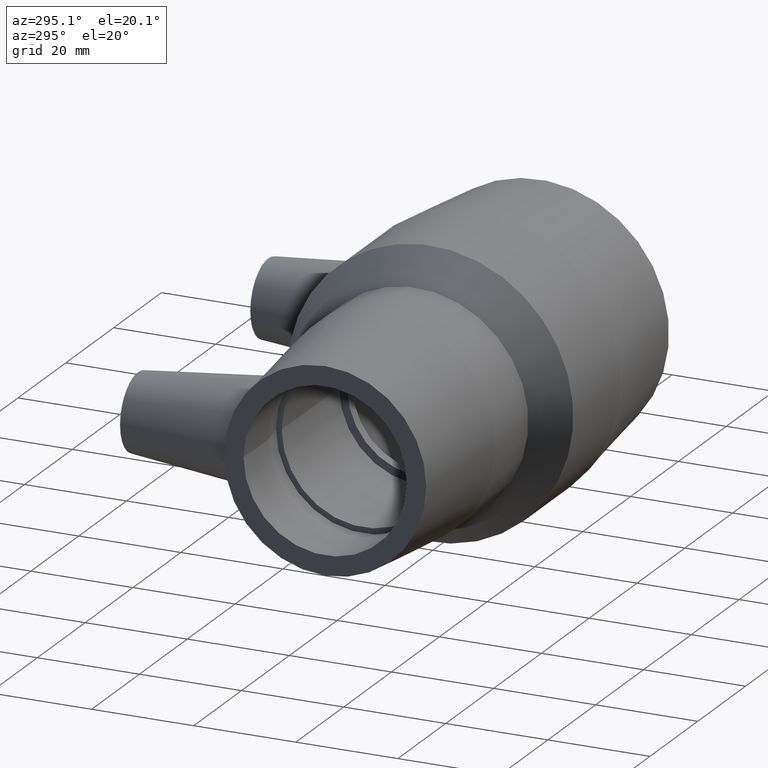
[diagram: clean part render]
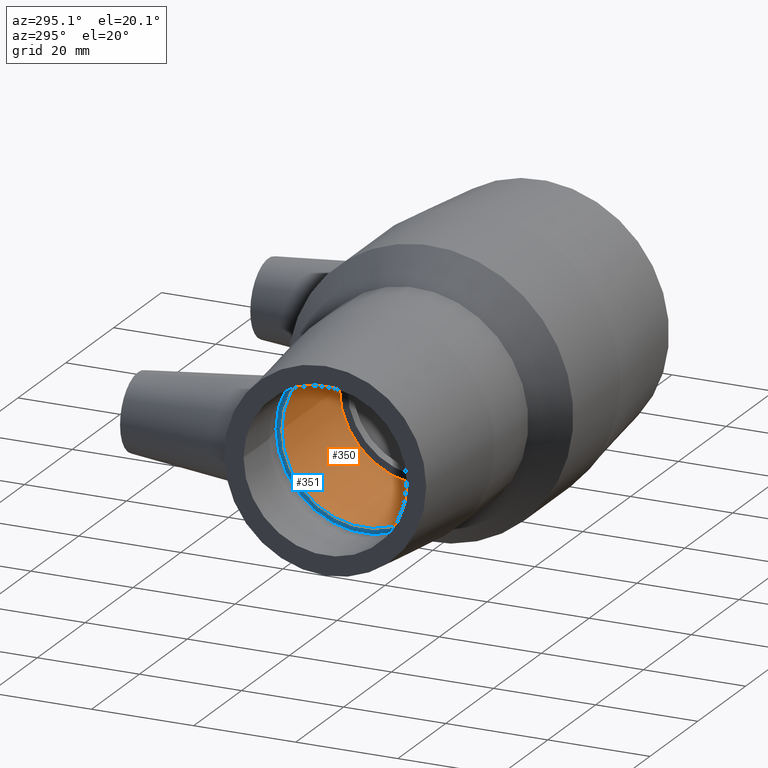
[diagram: same view with the hole feature highlighted: cylindrical wall and planar end face, labeled with their STEP entity ids]
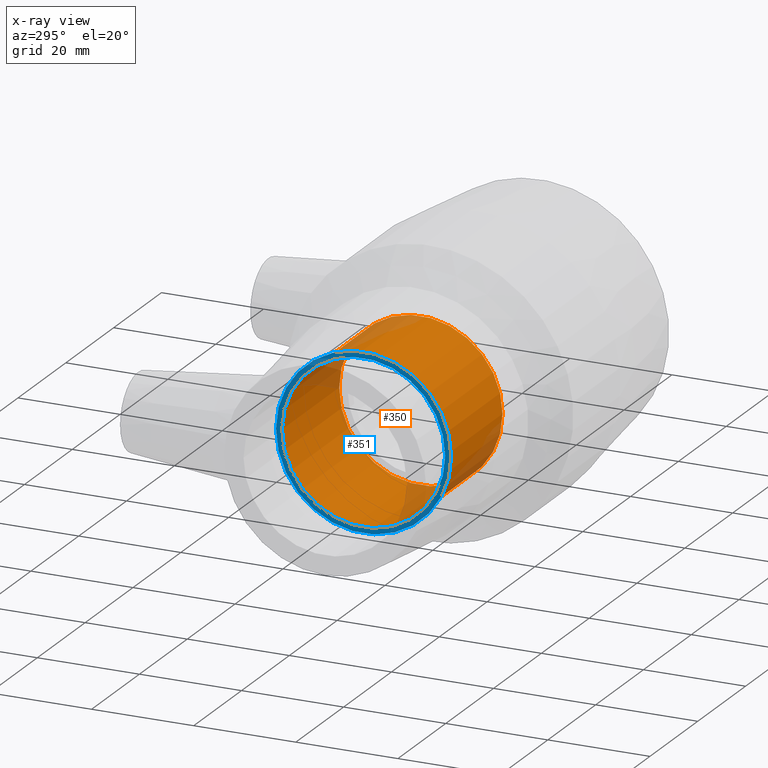
[diagram: x-ray of the same camera — body ghosted, the hole faces saturated]
A machine part, auxiliary view. The highlighted faces form one hole feature of diameter 32 mm: the cylindrical wall (entity #350, orange) and its adjacent planar end face (entity #351, blue) — they share a circular edge in the B-rep.
The next image is the same camera in x-ray (body ghosted, the hole faces saturated) — the bore reads through the body.
Wall:
#49=FACE_BOUND('',#148,.T.);
#65=CYLINDRICAL_SURFACE('',#407,16.);
#92=FACE_OUTER_BOUND('',#147,.T.);
#147=EDGE_LOOP('',(#300));
#148=EDGE_LOOP('',(#301));
#183=CIRCLE('',#406,16.);
#184=CIRCLE('',#408,16.);
#214=VERTEX_POINT('',#682);
#215=VERTEX_POINT('',#685);
#245=EDGE_CURVE('',#214,#214,#183,.T.);
#246=EDGE_CURVE('',#215,#215,#184,.T.);
#300=ORIENTED_EDGE('',*,*,#246,.F.);
#301=ORIENTED_EDGE('',*,*,#245,.T.);
#350=ADVANCED_FACE('',(#92,#49),#65,.F.);
#406=AXIS2_PLACEMENT_3D('',#683,#516,#517);
#407=AXIS2_PLACEMENT_3D('',#684,#518,#519);
#408=AXIS2_PLACEMENT_3D('',#686,#520,#521);
#516=DIRECTION('center_axis',(1.,1.83697019872103E-16,0.));
#517=DIRECTION('ref_axis',(0.,0.,-1.));
#518=DIRECTION('center_axis',(1.,1.83697019872103E-16,0.));
#519=DIRECTION('ref_axis',(-2.13961620591946E-16,1.,0.));
#520=DIRECTION('center_axis',(1.,1.83697019872103E-16,0.));
#521=DIRECTION('ref_axis',(0.,0.,-1.));
#682=CARTESIAN_POINT('',(-5.,16.,0.));
#683=CARTESIAN_POINT('Origin',(-5.,7.34788079488412E-15,0.));
#684=CARTESIAN_POINT('Origin',(-17.,5.14351655641888E-15,0.));
#685=CARTESIAN_POINT('',(-29.,16.,0.));
#686=CARTESIAN_POINT('Origin',(-29.,2.93915231795365E-15,0.));
End face:
#50=FACE_BOUND('',#150,.T.);
#93=FACE_OUTER_BOUND('',#149,.T.);
#149=EDGE_LOOP('',(#302));
#150=EDGE_LOOP('',(#303));
#184=CIRCLE('',#408,16.);
#185=CIRCLE('',#410,17.1336349955734);
#215=VERTEX_POINT('',#685);
#216=VERTEX_POINT('',#688);
#246=EDGE_CURVE('',#215,#215,#184,.T.);
#247=EDGE_CURVE('',#216,#216,#185,.T.);
#302=ORIENTED_EDGE('',*,*,#247,.F.);
#303=ORIENTED_EDGE('',*,*,#246,.T.);
#323=PLANE('',#409);
#351=ADVANCED_FACE('',(#93,#50),#323,.T.);
#408=AXIS2_PLACEMENT_3D('',#686,#520,#521);
#409=AXIS2_PLACEMENT_3D('',#687,#522,#523);
#410=AXIS2_PLACEMENT_3D('',#689,#524,#525);
#520=DIRECTION('center_axis',(1.,1.83697019872103E-16,0.));
#521=DIRECTION('ref_axis',(0.,0.,-1.));
#522=DIRECTION('center_axis',(-1.,-1.83697019872103E-16,0.));
#523=DIRECTION('ref_axis',(0.,0.,1.));
#524=DIRECTION('center_axis',(1.,1.83697019872103E-16,0.));
#525=DIRECTION('ref_axis',(0.,0.,-1.));
#685=CARTESIAN_POINT('',(-29.,16.,0.));
#686=CARTESIAN_POINT('Origin',(-29.,2.93915231795365E-15,0.));
#687=CARTESIAN_POINT('Origin',(-29.,17.1336349955735,0.));
#688=CARTESIAN_POINT('',(-29.,17.1336349955735,0.));
#689=CARTESIAN_POINT('Origin',(-29.,2.93915231795365E-15,0.));